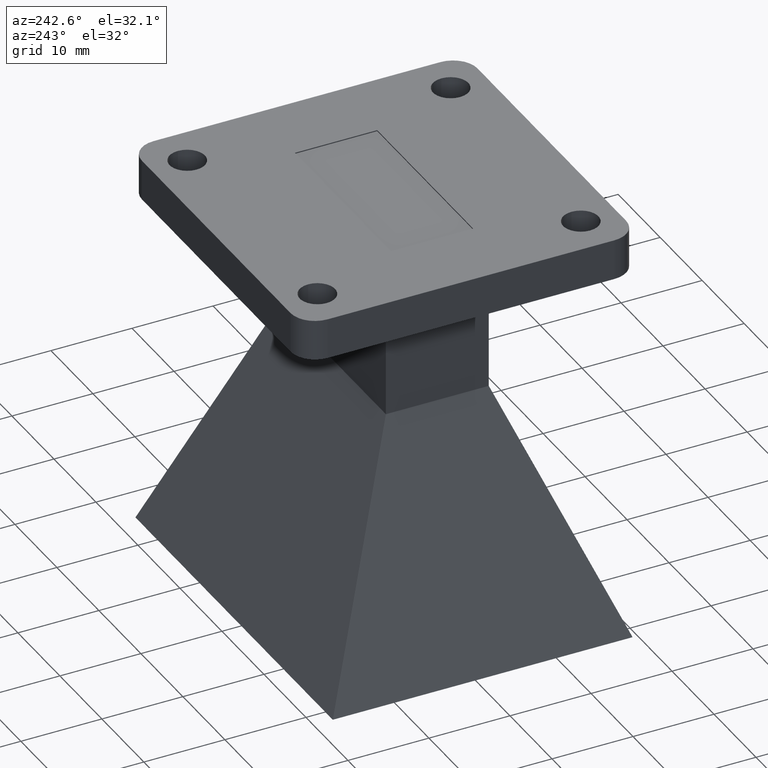
[diagram: clean part render]
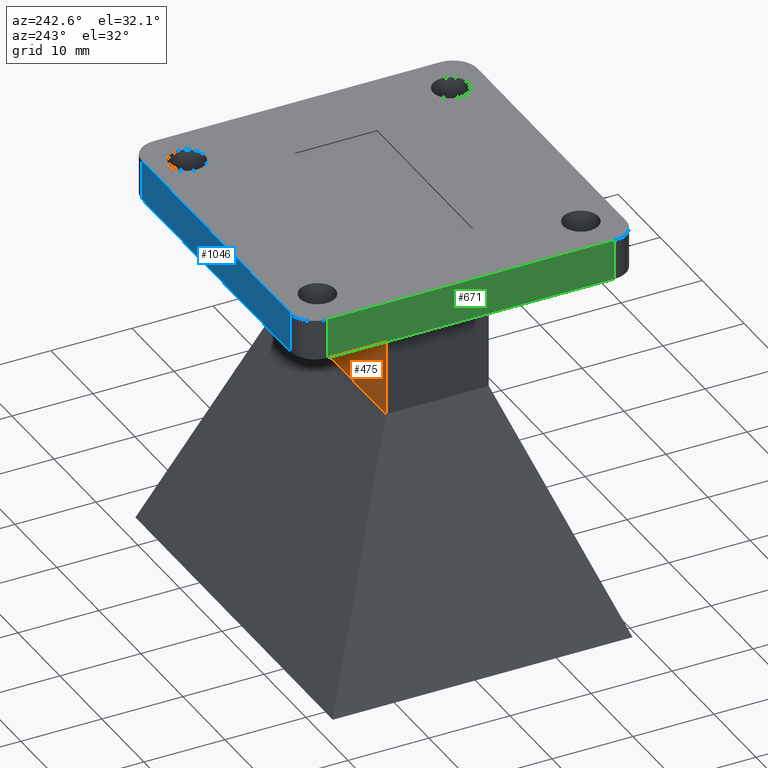
[diagram: same view with three faces highlighted in distinct colors, each labeled with its STEP entity id]
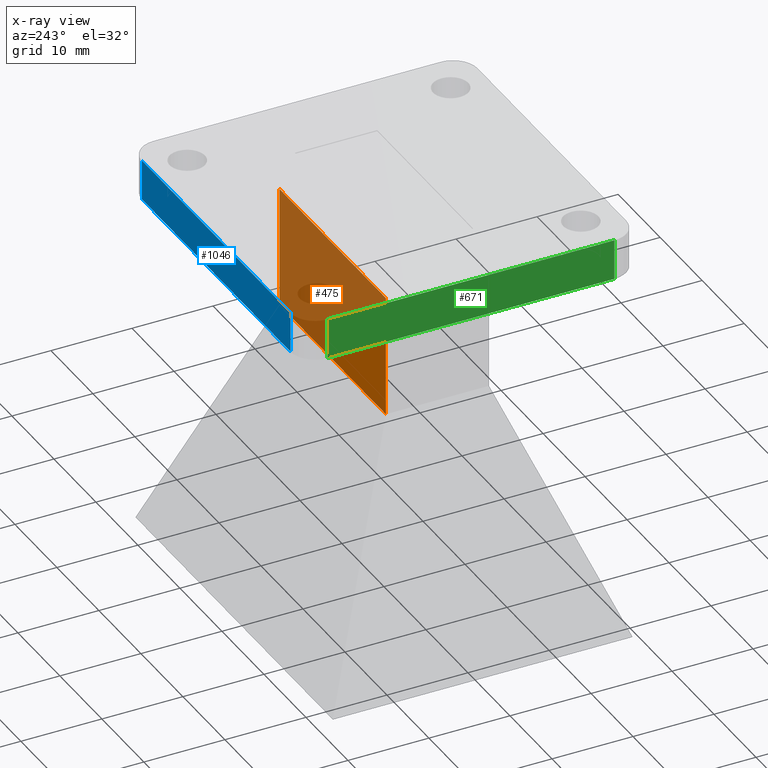
[diagram: x-ray of the same camera — body ghosted, the three highlighted faces saturated]
A machine part, auxiliary view with three faces highlighted in distinct colors.
The next image is the same camera in x-ray (body ghosted, the three faces saturated) — at least one of them is partly hidden behind the body in this view.
Their STEP definitions:

[orange] entity #475 — the highlighted planar face has unit normal (0, -1, 0).
#146 = VERTEX_POINT ( 'NONE', #449 ) ;
#263 = CARTESIAN_POINT ( 'NONE',  ( -0.4999999999999998300, 0.2500000000000000600, -0.1968503937007874100 ) ) ;
#305 = EDGE_LOOP ( 'NONE', ( #1153, #613, #1157, #420 ) ) ;
#329 = CARTESIAN_POINT ( 'NONE',  ( -0.4999999999999998300, 0.2500000000000000600, -0.7874015748031497600 ) ) ;
#337 = PLANE ( 'NONE',  #966 ) ;
#355 = EDGE_CURVE ( 'NONE', #499, #939, #428, .T. ) ;
#357 = EDGE_CURVE ( 'NONE', #146, #653, #1177, .T. ) ;
#412 = DIRECTION ( 'NONE',  ( -0.0000000000000000000, -0.0000000000000000000, 1.000000000000000000 ) ) ;
#420 = ORIENTED_EDGE ( 'NONE', *, *, #1131, .T. ) ;
#428 = LINE ( 'NONE', #846, #582 ) ;
#449 = CARTESIAN_POINT ( 'NONE',  ( -0.4999999999999998300, 0.2500000000000000600, -0.7874015748031497600 ) ) ;
#475 = ADVANCED_FACE ( 'NONE', ( #633 ), #337, .F. ) ;
#478 = VECTOR ( 'NONE', #603, 39.37007874015748100 ) ;
#499 = VERTEX_POINT ( 'NONE', #775 ) ;
#505 = DIRECTION ( 'NONE',  ( 0.0000000000000000000, -1.000000000000000000, 0.0000000000000000000 ) ) ;
#553 = VECTOR ( 'NONE', #1121, 39.37007874015748100 ) ;
#582 = VECTOR ( 'NONE', #412, 39.37007874015748100 ) ;
#603 = DIRECTION ( 'NONE',  ( 1.000000000000000000, 0.0000000000000000000, 0.0000000000000000000 ) ) ;
#613 = ORIENTED_EDGE ( 'NONE', *, *, #997, .T. ) ;
#633 = FACE_OUTER_BOUND ( 'NONE', #305, .T. ) ;
#653 = VERTEX_POINT ( 'NONE', #263 ) ;
#675 = VECTOR ( 'NONE', #1044, 39.37007874015748100 ) ;
#710 = LINE ( 'NONE', #969, #478 ) ;
#775 = CARTESIAN_POINT ( 'NONE',  ( 0.5000000000000000000, 0.2500000000000000600, -0.7874015748031497600 ) ) ;
#784 = LINE ( 'NONE', #329, #675 ) ;
#834 = CARTESIAN_POINT ( 'NONE',  ( 0.5000000000000001100, 0.2500000000000000600, -0.1968503937007874100 ) ) ;
#846 = CARTESIAN_POINT ( 'NONE',  ( 0.5000000000000001100, 0.2500000000000000600, -2.692837138356194400 ) ) ;
#849 = CARTESIAN_POINT ( 'NONE',  ( -0.4999999999999998300, 0.2500000000000000600, -2.692837138356194400 ) ) ;
#939 = VERTEX_POINT ( 'NONE', #834 ) ;
#962 = CARTESIAN_POINT ( 'NONE',  ( -0.4999999999999998300, 0.2500000000000000600, -2.692837138356194400 ) ) ;
#966 = AXIS2_PLACEMENT_3D ( 'NONE', #962, #505, #1146 ) ;
#969 = CARTESIAN_POINT ( 'NONE',  ( -0.4999999999999998300, 0.2500000000000000600, -0.1968503937007874100 ) ) ;
#997 = EDGE_CURVE ( 'NONE', #499, #146, #784, .T. ) ;
#1044 = DIRECTION ( 'NONE',  ( -1.000000000000000000, -0.0000000000000000000, -0.0000000000000000000 ) ) ;
#1121 = DIRECTION ( 'NONE',  ( -0.0000000000000000000, -0.0000000000000000000, 1.000000000000000000 ) ) ;
#1131 = EDGE_CURVE ( 'NONE', #653, #939, #710, .T. ) ;
#1146 = DIRECTION ( 'NONE',  ( 0.0000000000000000000, -0.0000000000000000000, -1.000000000000000000 ) ) ;
#1153 = ORIENTED_EDGE ( 'NONE', *, *, #355, .F. ) ;
#1157 = ORIENTED_EDGE ( 'NONE', *, *, #357, .T. ) ;
#1177 = LINE ( 'NONE', #849, #553 ) ;

[blue] entity #1046 — the highlighted planar face has unit normal (0, 1, 0).
#4 = CARTESIAN_POINT ( 'NONE',  ( -0.6968897637795273800, 0.8149999999999999500, -0.1968503937007874100 ) ) ;
#8 = DIRECTION ( 'NONE',  ( -1.000000000000000000, -0.0000000000000000000, -0.0000000000000000000 ) ) ;
#99 = AXIS2_PLACEMENT_3D ( 'NONE', #773, #351, #783 ) ;
#251 = PLANE ( 'NONE',  #99 ) ;
#300 = LINE ( 'NONE', #304, #631 ) ;
#304 = CARTESIAN_POINT ( 'NONE',  ( -0.6968897637795273800, 0.8149999999999999500, -0.1968503937007874100 ) ) ;
#351 = DIRECTION ( 'NONE',  ( 0.0000000000000000000, 1.000000000000000000, 0.0000000000000000000 ) ) ;
#381 = VERTEX_POINT ( 'NONE', #1032 ) ;
#385 = FACE_OUTER_BOUND ( 'NONE', #940, .T. ) ;
#471 = DIRECTION ( 'NONE',  ( -1.000000000000000000, -0.0000000000000000000, -0.0000000000000000000 ) ) ;
#474 = CARTESIAN_POINT ( 'NONE',  ( -0.6968897637795273800, 0.8149999999999999500, 0.0000000000000000000 ) ) ;
#487 = ORIENTED_EDGE ( 'NONE', *, *, #696, .F. ) ;
#504 = DIRECTION ( 'NONE',  ( 0.0000000000000000000, 0.0000000000000000000, 1.000000000000000000 ) ) ;
#546 = DIRECTION ( 'NONE',  ( 0.0000000000000000000, 0.0000000000000000000, 1.000000000000000000 ) ) ;
#566 = LINE ( 'NONE', #807, #985 ) ;
#598 = LINE ( 'NONE', #4, #822 ) ;
#631 = VECTOR ( 'NONE', #471, 39.37007874015748100 ) ;
#648 = CARTESIAN_POINT ( 'NONE',  ( -0.6968897637795273800, 0.8149999999999999500, -0.1968503937007874100 ) ) ;
#696 = EDGE_CURVE ( 'NONE', #1101, #924, #566, .T. ) ;
#703 = EDGE_CURVE ( 'NONE', #892, #924, #598, .T. ) ;
#773 = CARTESIAN_POINT ( 'NONE',  ( -0.6968897637795273800, 0.8149999999999999500, -0.1968503937007874100 ) ) ;
#778 = ORIENTED_EDGE ( 'NONE', *, *, #837, .T. ) ;
#781 = CARTESIAN_POINT ( 'NONE',  ( 0.6968897637795276000, 0.8149999999999999500, -0.1968503937007874100 ) ) ;
#783 = DIRECTION ( 'NONE',  ( 0.0000000000000000000, -0.0000000000000000000, 1.000000000000000000 ) ) ;
#807 = CARTESIAN_POINT ( 'NONE',  ( -0.6968897637795273800, 0.8149999999999999500, 0.0000000000000000000 ) ) ;
#813 = ORIENTED_EDGE ( 'NONE', *, *, #703, .T. ) ;
#822 = VECTOR ( 'NONE', #546, 39.37007874015748100 ) ;
#837 = EDGE_CURVE ( 'NONE', #381, #892, #300, .T. ) ;
#892 = VERTEX_POINT ( 'NONE', #648 ) ;
#924 = VERTEX_POINT ( 'NONE', #474 ) ;
#940 = EDGE_LOOP ( 'NONE', ( #487, #1011, #778, #813 ) ) ;
#948 = CARTESIAN_POINT ( 'NONE',  ( 0.6968897637795276000, 0.8149999999999999500, 0.0000000000000000000 ) ) ;
#985 = VECTOR ( 'NONE', #8, 39.37007874015748100 ) ;
#1011 = ORIENTED_EDGE ( 'NONE', *, *, #1074, .F. ) ;
#1032 = CARTESIAN_POINT ( 'NONE',  ( 0.6968897637795276000, 0.8149999999999999500, -0.1968503937007874100 ) ) ;
#1046 = ADVANCED_FACE ( 'NONE', ( #385 ), #251, .T. ) ;
#1048 = LINE ( 'NONE', #781, #1062 ) ;
#1062 = VECTOR ( 'NONE', #504, 39.37007874015748100 ) ;
#1074 = EDGE_CURVE ( 'NONE', #381, #1101, #1048, .T. ) ;
#1101 = VERTEX_POINT ( 'NONE', #948 ) ;

[green] entity #671 — the highlighted planar face has unit normal (-1, 0, 0).
#38 = CARTESIAN_POINT ( 'NONE',  ( -0.8149999999999997200, 0.6968897637795274900, -0.1968503937007874100 ) ) ;
#71 = CARTESIAN_POINT ( 'NONE',  ( -0.8149999999999997200, 0.6968897637795274900, -0.1968503937007874100 ) ) ;
#85 = VECTOR ( 'NONE', #195, 39.37007874015748100 ) ;
#112 = LINE ( 'NONE', #382, #85 ) ;
#115 = ORIENTED_EDGE ( 'NONE', *, *, #735, .T. ) ;
#195 = DIRECTION ( 'NONE',  ( 0.0000000000000000000, 0.0000000000000000000, 1.000000000000000000 ) ) ;
#201 = VECTOR ( 'NONE', #325, 39.37007874015748100 ) ;
#209 = ORIENTED_EDGE ( 'NONE', *, *, #344, .F. ) ;
#216 = FACE_OUTER_BOUND ( 'NONE', #1013, .T. ) ;
#259 = VECTOR ( 'NONE', #891, 39.37007874015748100 ) ;
#284 = PLANE ( 'NONE',  #796 ) ;
#325 = DIRECTION ( 'NONE',  ( -0.0000000000000000000, -1.000000000000000000, -0.0000000000000000000 ) ) ;
#339 = VERTEX_POINT ( 'NONE', #938 ) ;
#344 = EDGE_CURVE ( 'NONE', #1143, #602, #855, .T. ) ;
#356 = EDGE_CURVE ( 'NONE', #975, #339, #874, .T. ) ;
#378 = CARTESIAN_POINT ( 'NONE',  ( -0.8149999999999997200, -0.6968897637795274900, -0.1968503937007874100 ) ) ;
#382 = CARTESIAN_POINT ( 'NONE',  ( -0.8149999999999997200, -0.6968897637795274900, -0.1968503937007874100 ) ) ;
#422 = CARTESIAN_POINT ( 'NONE',  ( -0.8149999999999997200, 0.6968897637795274900, 0.0000000000000000000 ) ) ;
#578 = EDGE_CURVE ( 'NONE', #975, #1143, #885, .T. ) ;
#590 = DIRECTION ( 'NONE',  ( -0.0000000000000000000, -1.000000000000000000, -0.0000000000000000000 ) ) ;
#602 = VERTEX_POINT ( 'NONE', #695 ) ;
#671 = ADVANCED_FACE ( 'NONE', ( #216 ), #284, .T. ) ;
#695 = CARTESIAN_POINT ( 'NONE',  ( -0.8149999999999997200, -0.6968897637795274900, 0.0000000000000000000 ) ) ;
#723 = DIRECTION ( 'NONE',  ( -1.000000000000000000, 0.0000000000000000000, 0.0000000000000000000 ) ) ;
#735 = EDGE_CURVE ( 'NONE', #339, #602, #112, .T. ) ;
#796 = AXIS2_PLACEMENT_3D ( 'NONE', #378, #723, #1098 ) ;
#835 = CARTESIAN_POINT ( 'NONE',  ( -0.8149999999999997200, -0.6968897637795274900, -0.1968503937007874100 ) ) ;
#855 = LINE ( 'NONE', #918, #1124 ) ;
#874 = LINE ( 'NONE', #835, #201 ) ;
#885 = LINE ( 'NONE', #71, #259 ) ;
#891 = DIRECTION ( 'NONE',  ( 0.0000000000000000000, 0.0000000000000000000, 1.000000000000000000 ) ) ;
#918 = CARTESIAN_POINT ( 'NONE',  ( -0.8149999999999997200, -0.6968897637795274900, 0.0000000000000000000 ) ) ;
#938 = CARTESIAN_POINT ( 'NONE',  ( -0.8149999999999997200, -0.6968897637795274900, -0.1968503937007874100 ) ) ;
#975 = VERTEX_POINT ( 'NONE', #38 ) ;
#1013 = EDGE_LOOP ( 'NONE', ( #209, #1040, #1052, #115 ) ) ;
#1040 = ORIENTED_EDGE ( 'NONE', *, *, #578, .F. ) ;
#1052 = ORIENTED_EDGE ( 'NONE', *, *, #356, .T. ) ;
#1098 = DIRECTION ( 'NONE',  ( 0.0000000000000000000, 0.0000000000000000000, 1.000000000000000000 ) ) ;
#1124 = VECTOR ( 'NONE', #590, 39.37007874015748100 ) ;
#1143 = VERTEX_POINT ( 'NONE', #422 ) ;